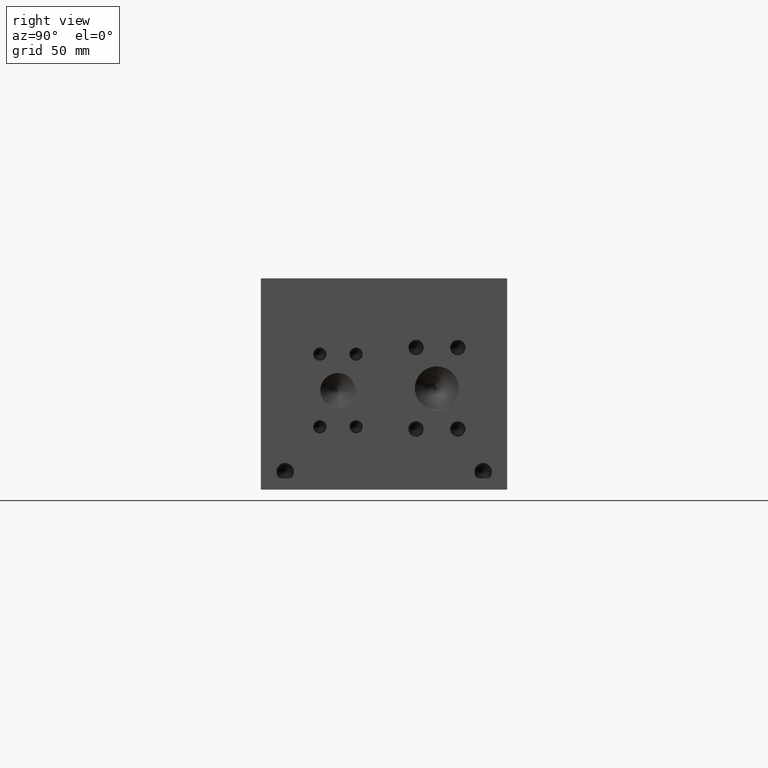
[diagram: clean part render]
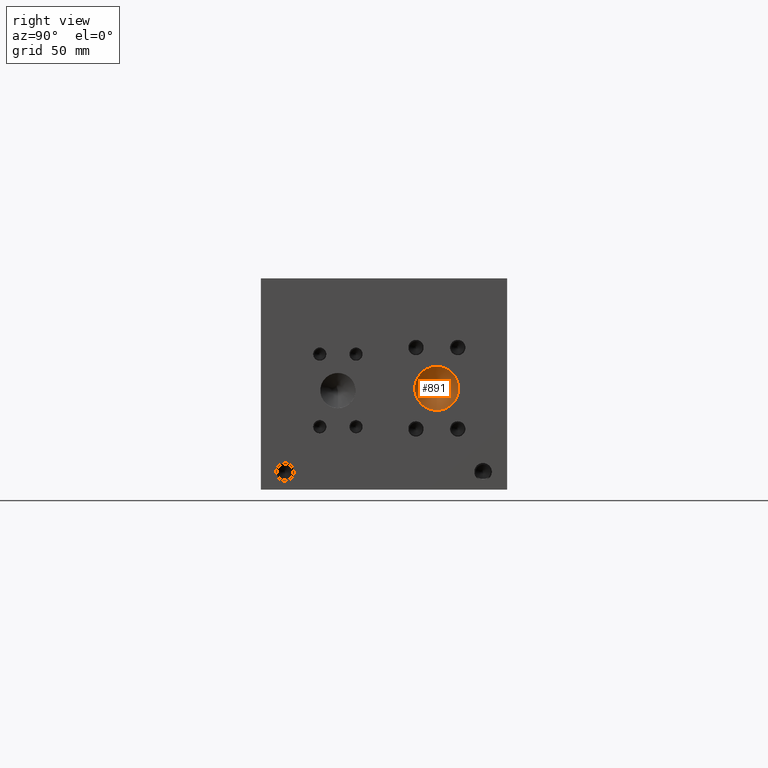
[diagram: same view with one face highlighted and labeled with its STEP entity id]
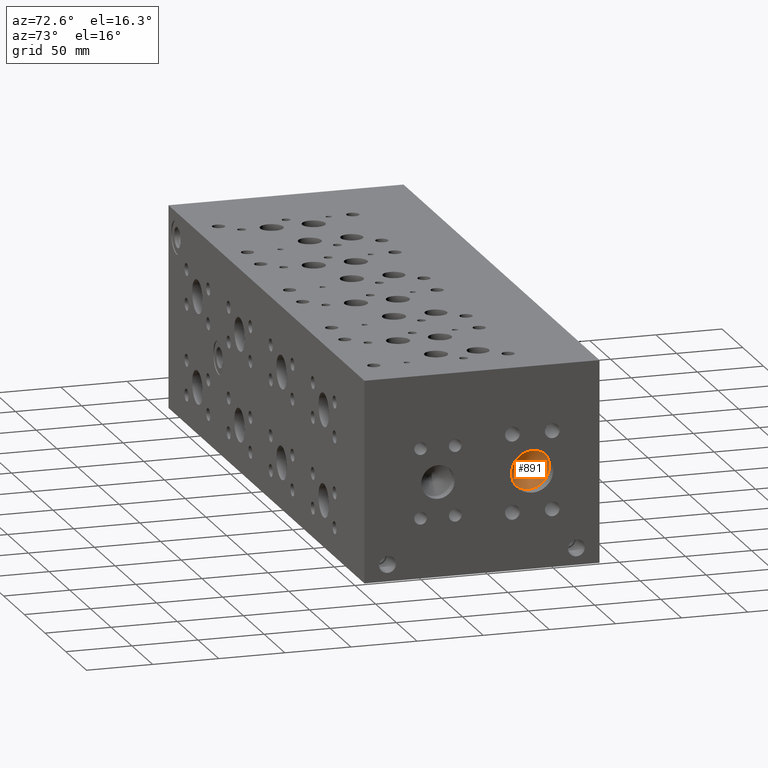
[diagram: same view with one face highlighted and labeled with its STEP entity id]
A machine part, right view. The second image highlights one B-rep face of the part: STEP entity #891.
A second angle (auxiliary view) of the same face is appended — the face is thin or edge-on in the first view.
In plain terms, the highlighted conical surface has half-angle 60 deg.
Its self-contained STEP definition (entity closure, byte-faithful):
#875=CARTESIAN_POINT('',(459.32684675000007,127.00000000000001,73.025000000000006));
#876=DIRECTION('',(1.0,0.0,0.0));
#877=DIRECTION('',(0.0,0.0,-1.0));
#878=AXIS2_PLACEMENT_3D('',#875,#876,#877);
#879=CONICAL_SURFACE('',#878,7.937500000000002,60.000000063301407);
#880=CARTESIAN_POINT('',(463.90956450000004,127.00000000000001,57.150000000000006));
#881=VERTEX_POINT('',#880);
#882=CARTESIAN_POINT('',(463.90956450000004,127.00000000000001,73.025000000000006));
#883=DIRECTION('',(1.0,0.0,0.0));
#884=DIRECTION('',(0.0,0.0,-1.0));
#885=AXIS2_PLACEMENT_3D('',#882,#883,#884);
#886=CIRCLE('',#885,15.875000000000004);
#887=EDGE_CURVE('',#881,#881,#886,.T.);
#888=ORIENTED_EDGE('',*,*,#887,.T.);
#889=EDGE_LOOP('',(#888));
#890=FACE_OUTER_BOUND('',#889,.T.);
#891=ADVANCED_FACE('',(#890),#879,.F.);